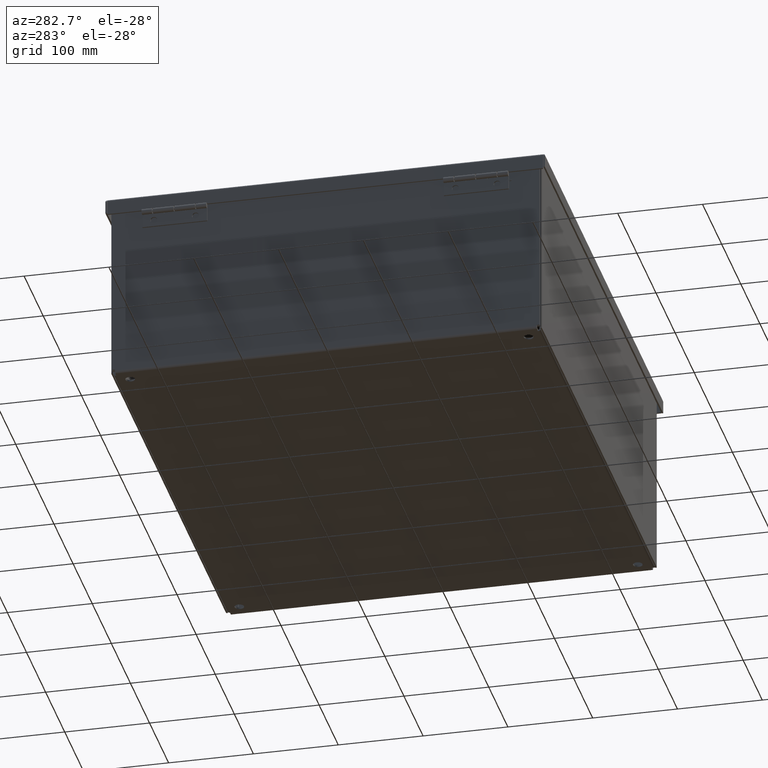
[diagram: clean part render]
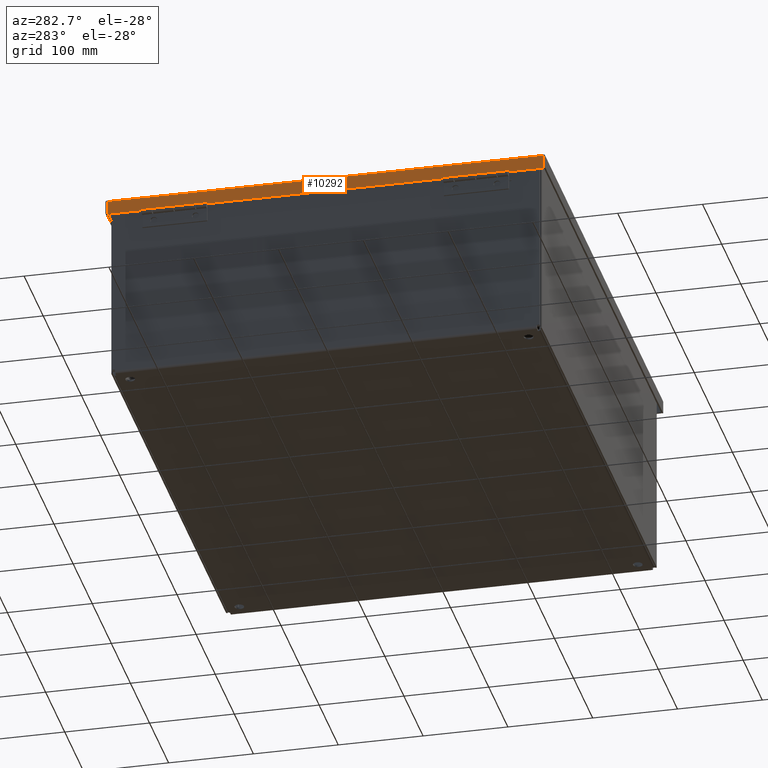
[diagram: same view with one face highlighted and labeled with its STEP entity id]
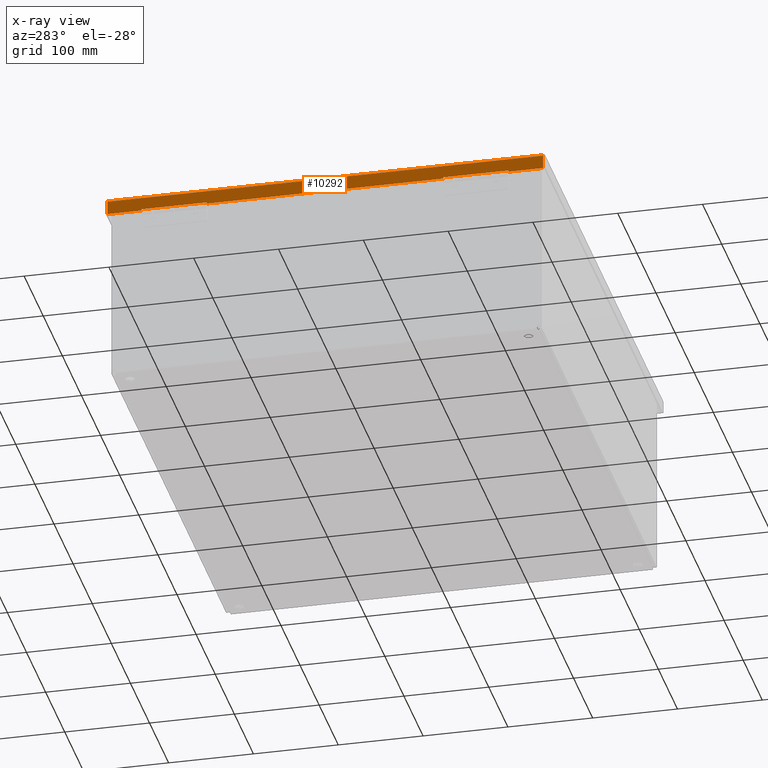
[diagram: x-ray of the same camera — body ghosted, the highlighted face saturated]
A machine part, auxiliary view. The second image highlights one B-rep face of the part: STEP entity #10292.
The next image is the same camera in x-ray: the body ghosted, the highlighted face saturated — about 0% of this face is hidden behind the body in this view.
In plain terms, the highlighted planar face has unit normal (-1, 0, -0).
Its self-contained STEP definition (entity closure, byte-faithful):
#542=LINE('',#15354,#1471);
#546=LINE('',#15362,#1475);
#549=LINE('',#15368,#1478);
#561=LINE('',#15392,#1490);
#563=LINE('',#15397,#1492);
#566=LINE('',#15402,#1495);
#568=LINE('',#15406,#1497);
#570=LINE('',#15409,#1499);
#606=LINE('',#15672,#1535);
#608=LINE('',#15675,#1537);
#609=LINE('',#15678,#1538);
#610=LINE('',#15679,#1539);
#1471=VECTOR('',#12377,3.03125);
#1475=VECTOR('',#12383,0.0624999999999949);
#1478=VECTOR('',#12388,0.0624999999999994);
#1490=VECTOR('',#12404,1.59787500000005);
#1492=VECTOR('',#12408,3.03125);
#1495=VECTOR('',#12413,0.0624999999999949);
#1497=VECTOR('',#12417,0.0624999999999994);
#1499=VECTOR('',#12421,10.96875);
#1535=VECTOR('',#12483,0.644749999999998);
#1537=VECTOR('',#12487,1.59787499999996);
#1538=VECTOR('',#12490,20.227);
#1539=VECTOR('',#12491,0.644750000000003);
#2296=PLANE('',#10964);
#2783=FACE_OUTER_BOUND('',#3407,.T.);
#3407=EDGE_LOOP('',(#7316,#7317,#7318,#7319,#7320,#7321,#7322,#7323,#7324,
#7325,#7326,#7327));
#4497=VERTEX_POINT('',#15352);
#4498=VERTEX_POINT('',#15353);
#4501=VERTEX_POINT('',#15361);
#4503=VERTEX_POINT('',#15367);
#4513=VERTEX_POINT('',#15391);
#4514=VERTEX_POINT('',#15395);
#4515=VERTEX_POINT('',#15396);
#4516=VERTEX_POINT('',#15401);
#4517=VERTEX_POINT('',#15405);
#4550=VERTEX_POINT('',#15669);
#4551=VERTEX_POINT('',#15671);
#4552=VERTEX_POINT('',#15677);
#5503=EDGE_CURVE('',#4497,#4498,#542,.T.);
#5507=EDGE_CURVE('',#4501,#4497,#546,.T.);
#5510=EDGE_CURVE('',#4498,#4503,#549,.T.);
#5522=EDGE_CURVE('',#4513,#4501,#561,.T.);
#5524=EDGE_CURVE('',#4514,#4515,#563,.T.);
#5527=EDGE_CURVE('',#4516,#4514,#566,.T.);
#5529=EDGE_CURVE('',#4515,#4517,#568,.T.);
#5531=EDGE_CURVE('',#4503,#4516,#570,.T.);
#5580=EDGE_CURVE('',#4550,#4551,#606,.T.);
#5582=EDGE_CURVE('',#4517,#4551,#608,.T.);
#5583=EDGE_CURVE('',#4550,#4552,#609,.T.);
#5584=EDGE_CURVE('',#4513,#4552,#610,.T.);
#7316=ORIENTED_EDGE('',*,*,#5510,.T.);
#7317=ORIENTED_EDGE('',*,*,#5531,.T.);
#7318=ORIENTED_EDGE('',*,*,#5527,.T.);
#7319=ORIENTED_EDGE('',*,*,#5524,.T.);
#7320=ORIENTED_EDGE('',*,*,#5529,.T.);
#7321=ORIENTED_EDGE('',*,*,#5582,.T.);
#7322=ORIENTED_EDGE('',*,*,#5580,.F.);
#7323=ORIENTED_EDGE('',*,*,#5583,.T.);
#7324=ORIENTED_EDGE('',*,*,#5584,.F.);
#7325=ORIENTED_EDGE('',*,*,#5522,.T.);
#7326=ORIENTED_EDGE('',*,*,#5507,.T.);
#7327=ORIENTED_EDGE('',*,*,#5503,.T.);
#10292=ADVANCED_FACE('',(#2783),#2296,.T.);
#10964=AXIS2_PLACEMENT_3D('',#15676,#12488,#12489);
#12377=DIRECTION('',(-2.52325659948723E-16,-1.,5.4818402948622E-16));
#12383=DIRECTION('',(5.37502320912948E-15,2.30951701644628E-16,1.));
#12388=DIRECTION('',(-5.37502320912948E-15,-2.30951701644628E-16,-1.));
#12404=DIRECTION('',(-2.52325659948723E-16,-1.,4.09115062374921E-16));
#12408=DIRECTION('',(-2.52325659948723E-16,-1.,5.4818402948622E-16));
#12413=DIRECTION('',(5.37502320912948E-15,2.30951701644628E-16,1.));
#12417=DIRECTION('',(-5.37502320912948E-15,-2.30951701644628E-16,-1.));
#12421=DIRECTION('',(-2.52325659948723E-16,-1.,4.09115062374921E-16));
#12483=DIRECTION('',(-5.37502320912948E-15,-4.33875509191502E-15,-1.));
#12487=DIRECTION('',(-2.52325659948723E-16,-1.,4.09115062374921E-16));
#12488=DIRECTION('center_axis',(-1.,2.52325659948726E-16,5.37502320912948E-15));
#12489=DIRECTION('ref_axis',(4.51194637207664E-15,6.85430283739587E-17,
1.));
#12490=DIRECTION('',(2.52325659948726E-16,1.,-9.90644044257284E-31));
#12491=DIRECTION('',(5.37502320912948E-15,-4.33875509191497E-15,1.));
#15352=CARTESIAN_POINT('',(-12.1875,8.51562499999995,-0.613499999999946));
#15353=CARTESIAN_POINT('',(-12.1875,5.48437499999995,-0.613499999999945));
#15354=CARTESIAN_POINT('',(-12.1875,4.25781249999998,-0.613499999999944));
#15361=CARTESIAN_POINT('',(-12.1875,8.51562499999995,-0.675999999999941));
#15362=CARTESIAN_POINT('',(-12.1875,8.51562499999995,-0.476375511671723));
#15367=CARTESIAN_POINT('',(-12.1875,5.48437499999995,-0.675999999999944));
#15368=CARTESIAN_POINT('',(-12.1875,5.48437499999995,-0.445125511671724));
#15391=CARTESIAN_POINT('',(-12.1875,10.1135,-0.676000000000002));
#15392=CARTESIAN_POINT('',(-12.1875,10.1284178932188,-0.676000000000003));
#15395=CARTESIAN_POINT('',(-12.1875,-5.48437500000004,-0.613500000000022));
#15396=CARTESIAN_POINT('',(-12.1875,-8.51562500000004,-0.61350000000002));
#15397=CARTESIAN_POINT('',(-12.1875,-2.74218750000002,-0.613500000000023));
#15401=CARTESIAN_POINT('',(-12.1875,-5.48437500000004,-0.676000000000017));
#15402=CARTESIAN_POINT('',(-12.1875,-5.48437500000004,-0.476375511671759));
#15405=CARTESIAN_POINT('',(-12.1875,-8.51562500000004,-0.676000000000019));
#15406=CARTESIAN_POINT('',(-12.1875,-8.51562500000004,-0.44512551167176));
#15409=CARTESIAN_POINT('',(-12.1875,10.1284178932188,-0.676000000000003));
#15669=CARTESIAN_POINT('',(-12.1875,-10.1135,-0.0312499999999949));
#15671=CARTESIAN_POINT('',(-12.1875,-10.1135,-0.675999999999993));
#15672=CARTESIAN_POINT('',(-12.1875,-10.1135,-0.315188011671727));
#15675=CARTESIAN_POINT('',(-12.1875,10.1284178932188,-0.676000000000003));
#15676=CARTESIAN_POINT('Origin',(-12.1875,5.3044384460647E-16,-0.276751023343503));
#15677=CARTESIAN_POINT('',(-12.1875,10.1135,-0.0312499999999996));
#15678=CARTESIAN_POINT('',(-12.1875,2.73112972313422E-16,-0.0312499999999995));
#15679=CARTESIAN_POINT('',(-12.1875,10.1135,-0.31518801167173));